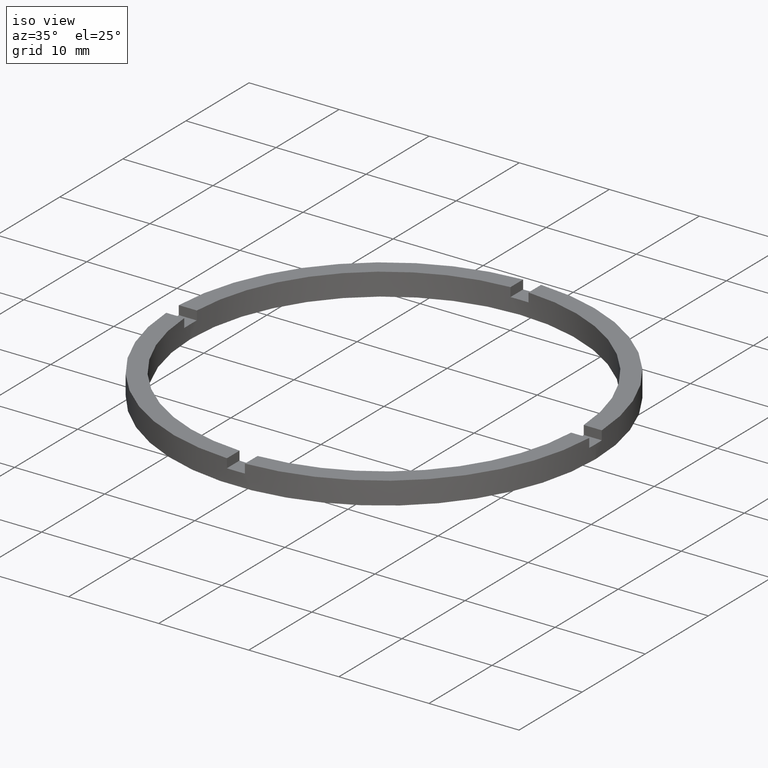
[diagram: clean part render]
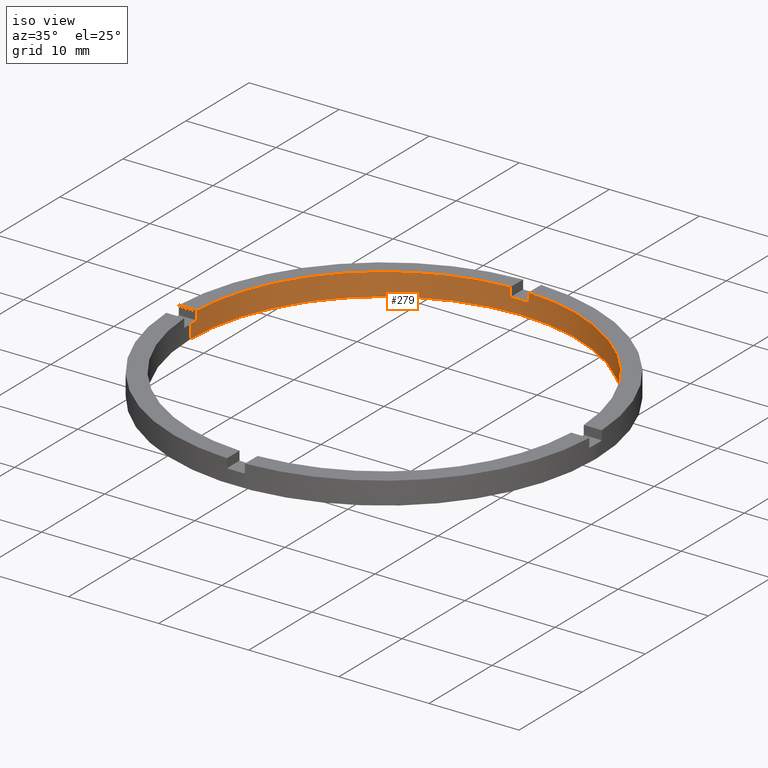
[diagram: same view with one face highlighted and labeled with its STEP entity id]
A machine part, iso view. The second image highlights one B-rep face of the part: STEP entity #279.
In plain terms, the highlighted cylindrical surface (partial cylindrical patch) has radius 21.5 mm, axis along (-0, -0, -1).
Its self-contained STEP definition (entity closure, byte-faithful):
#15 = ORIENTED_EDGE ( 'NONE', *, *, #314, .T. ) ;
#21 = DIRECTION ( 'NONE',  ( 0.000000000000000000, 0.000000000000000000, 1.000000000000000000 ) ) ;
#23 = EDGE_CURVE ( 'NONE', #247, #522, #391, .T. ) ;
#28 = CARTESIAN_POINT ( 'NONE',  ( 21.47673159491453632, 0.9999999999998419042, 2.500000000000000000 ) ) ;
#34 = ORIENTED_EDGE ( 'NONE', *, *, #770, .T. ) ;
#37 = ORIENTED_EDGE ( 'NONE', *, *, #550, .F. ) ;
#42 = EDGE_CURVE ( 'NONE', #681, #522, #423, .T. ) ;
#45 = VERTEX_POINT ( 'NONE', #645 ) ;
#59 = VERTEX_POINT ( 'NONE', #309 ) ;
#75 = EDGE_CURVE ( 'NONE', #681, #59, #176, .T. ) ;
#76 = CARTESIAN_POINT ( 'NONE',  ( -21.47673159491452921, 0.9999999999999749090, 2.500000000000000000 ) ) ;
#78 = EDGE_CURVE ( 'NONE', #247, #408, #434, .T. ) ;
#84 = CARTESIAN_POINT ( 'NONE',  ( 21.47673159491453632, 0.9999999999998419042, 1.500000000000000000 ) ) ;
#110 = DIRECTION ( 'NONE',  ( 0.000000000000000000, 0.000000000000000000, 1.000000000000000000 ) ) ;
#138 = ORIENTED_EDGE ( 'NONE', *, *, #438, .F. ) ;
#150 = ORIENTED_EDGE ( 'NONE', *, *, #23, .T. ) ;
#152 = AXIS2_PLACEMENT_3D ( 'NONE', #347, #654, #648 ) ;
#154 = ORIENTED_EDGE ( 'NONE', *, *, #75, .T. ) ;
#158 = DIRECTION ( 'NONE',  ( 1.000000000000000000, 0.000000000000000000, 0.000000000000000000 ) ) ;
#165 = EDGE_CURVE ( 'NONE', #686, #533, #205, .T. ) ;
#168 = CARTESIAN_POINT ( 'NONE',  ( 0.000000000000000000, 0.000000000000000000, 0.000000000000000000 ) ) ;
#176 = CIRCLE ( 'NONE', #152, 21.50000000000000000 ) ;
#205 = LINE ( 'NONE', #783, #728 ) ;
#206 = CIRCLE ( 'NONE', #608, 21.50000000000000000 ) ;
#209 = CIRCLE ( 'NONE', #718, 21.50000000000000000 ) ;
#215 = VERTEX_POINT ( 'NONE', #285 ) ;
#216 = CIRCLE ( 'NONE', #351, 21.50000000000000000 ) ;
#225 = CARTESIAN_POINT ( 'NONE',  ( 0.9999999999999735767, 21.47673159491452566, 2.500000000000000000 ) ) ;
#229 = ORIENTED_EDGE ( 'NONE', *, *, #165, .T. ) ;
#237 = LINE ( 'NONE', #362, #765 ) ;
#242 = DIRECTION ( 'NONE',  ( 1.000000000000000000, 0.000000000000000000, 0.000000000000000000 ) ) ;
#244 = DIRECTION ( 'NONE',  ( -1.000000000000000000, 0.000000000000000000, 0.000000000000000000 ) ) ;
#247 = VERTEX_POINT ( 'NONE', #704 ) ;
#254 = CARTESIAN_POINT ( 'NONE',  ( 0.000000000000000000, 0.000000000000000000, 2.500000000000000000 ) ) ;
#259 = CARTESIAN_POINT ( 'NONE',  ( 0.000000000000000000, 0.000000000000000000, 2.500000000000000000 ) ) ;
#279 = ADVANCED_FACE ( 'NONE', ( #469 ), #742, .F. ) ;
#282 = VERTEX_POINT ( 'NONE', #311 ) ;
#285 = CARTESIAN_POINT ( 'NONE',  ( -21.47673159491452921, 0.9999999999999749090, 1.500000000000000000 ) ) ;
#286 = CARTESIAN_POINT ( 'NONE',  ( -21.50000000000000000, 0.000000000000000000, 0.000000000000000000 ) ) ;
#301 = ORIENTED_EDGE ( 'NONE', *, *, #650, .F. ) ;
#302 = DIRECTION ( 'NONE',  ( -0.000000000000000000, -0.000000000000000000, -1.000000000000000000 ) ) ;
#305 = DIRECTION ( 'NONE',  ( 0.000000000000000000, 0.000000000000000000, 1.000000000000000000 ) ) ;
#307 = ORIENTED_EDGE ( 'NONE', *, *, #656, .F. ) ;
#309 = CARTESIAN_POINT ( 'NONE',  ( -1.000000000000025535, 21.47673159491452211, 1.500000000000000000 ) ) ;
#311 = CARTESIAN_POINT ( 'NONE',  ( 21.50000000000000000, 2.632990618166809235E-15, 0.000000000000000000 ) ) ;
#312 = VECTOR ( 'NONE', #554, 1000.000000000000000 ) ;
#314 = EDGE_CURVE ( 'NONE', #585, #408, #727, .T. ) ;
#343 = DIRECTION ( 'NONE',  ( -0.000000000000000000, -0.000000000000000000, -1.000000000000000000 ) ) ;
#347 = CARTESIAN_POINT ( 'NONE',  ( 0.000000000000000000, 0.000000000000000000, 1.500000000000000000 ) ) ;
#349 = CARTESIAN_POINT ( 'NONE',  ( 21.50000000000000000, 2.632990618166809235E-15, 2.500000000000000000 ) ) ;
#351 = AXIS2_PLACEMENT_3D ( 'NONE', #168, #612, #158 ) ;
#352 = DIRECTION ( 'NONE',  ( 1.000000000000000000, 0.000000000000000000, 0.000000000000000000 ) ) ;
#356 = CARTESIAN_POINT ( 'NONE',  ( 21.50000000000000000, 2.632990618166809235E-15, 1.500000000000000000 ) ) ;
#362 = CARTESIAN_POINT ( 'NONE',  ( -1.000000000000025979, 21.47673159491452566, 2.500000000000000000 ) ) ;
#369 = DIRECTION ( 'NONE',  ( 0.000000000000000000, 0.000000000000000000, 1.000000000000000000 ) ) ;
#381 = EDGE_CURVE ( 'NONE', #215, #686, #209, .T. ) ;
#385 = DIRECTION ( 'NONE',  ( -0.000000000000000000, -0.000000000000000000, -1.000000000000000000 ) ) ;
#391 = CIRCLE ( 'NONE', #588, 21.50000000000000000 ) ;
#396 = VECTOR ( 'NONE', #21, 1000.000000000000000 ) ;
#398 = VECTOR ( 'NONE', #385, 1000.000000000000000 ) ;
#407 = DIRECTION ( 'NONE',  ( 0.000000000000000000, 0.000000000000000000, 1.000000000000000000 ) ) ;
#408 = VERTEX_POINT ( 'NONE', #84 ) ;
#423 = LINE ( 'NONE', #700, #396 ) ;
#432 = ORIENTED_EDGE ( 'NONE', *, *, #78, .F. ) ;
#434 = LINE ( 'NONE', #28, #398 ) ;
#438 = EDGE_CURVE ( 'NONE', #585, #282, #477, .T. ) ;
#459 = AXIS2_PLACEMENT_3D ( 'NONE', #563, #407, #573 ) ;
#469 = FACE_OUTER_BOUND ( 'NONE', #538, .T. ) ;
#477 = LINE ( 'NONE', #349, #747 ) ;
#484 = CARTESIAN_POINT ( 'NONE',  ( 0.9999999999999735767, 21.47673159491452566, 1.500000000000000000 ) ) ;
#497 = ORIENTED_EDGE ( 'NONE', *, *, #381, .T. ) ;
#508 = LINE ( 'NONE', #76, #312 ) ;
#513 = CARTESIAN_POINT ( 'NONE',  ( -21.50000000000000000, 0.000000000000000000, 1.500000000000000000 ) ) ;
#522 = VERTEX_POINT ( 'NONE', #225 ) ;
#529 = CARTESIAN_POINT ( 'NONE',  ( 0.000000000000000000, 0.000000000000000000, 1.500000000000000000 ) ) ;
#532 = CARTESIAN_POINT ( 'NONE',  ( 0.000000000000000000, 0.000000000000000000, 2.500000000000000000 ) ) ;
#533 = VERTEX_POINT ( 'NONE', #286 ) ;
#536 = ORIENTED_EDGE ( 'NONE', *, *, #42, .F. ) ;
#538 = EDGE_LOOP ( 'NONE', ( #138, #15, #432, #150, #536, #154, #301, #34, #307, #497, #229, #37 ) ) ;
#550 = EDGE_CURVE ( 'NONE', #282, #533, #216, .T. ) ;
#554 = DIRECTION ( 'NONE',  ( 0.000000000000000000, 0.000000000000000000, 1.000000000000000000 ) ) ;
#563 = CARTESIAN_POINT ( 'NONE',  ( 0.000000000000000000, 0.000000000000000000, 1.500000000000000000 ) ) ;
#573 = DIRECTION ( 'NONE',  ( 1.000000000000000000, 0.000000000000000000, 0.000000000000000000 ) ) ;
#584 = DIRECTION ( 'NONE',  ( -0.000000000000000000, -0.000000000000000000, -1.000000000000000000 ) ) ;
#585 = VERTEX_POINT ( 'NONE', #356 ) ;
#588 = AXIS2_PLACEMENT_3D ( 'NONE', #254, #305, #352 ) ;
#592 = DIRECTION ( 'NONE',  ( 1.000000000000000000, 0.000000000000000000, 0.000000000000000000 ) ) ;
#608 = AXIS2_PLACEMENT_3D ( 'NONE', #259, #110, #242 ) ;
#612 = DIRECTION ( 'NONE',  ( 0.000000000000000000, 0.000000000000000000, 1.000000000000000000 ) ) ;
#623 = AXIS2_PLACEMENT_3D ( 'NONE', #532, #632, #244 ) ;
#632 = DIRECTION ( 'NONE',  ( -0.000000000000000000, -0.000000000000000000, -1.000000000000000000 ) ) ;
#645 = CARTESIAN_POINT ( 'NONE',  ( -21.47673159491452921, 0.9999999999999749090, 2.500000000000000000 ) ) ;
#648 = DIRECTION ( 'NONE',  ( 1.000000000000000000, 0.000000000000000000, 0.000000000000000000 ) ) ;
#650 = EDGE_CURVE ( 'NONE', #673, #59, #237, .T. ) ;
#654 = DIRECTION ( 'NONE',  ( 0.000000000000000000, -0.000000000000000000, 1.000000000000000000 ) ) ;
#656 = EDGE_CURVE ( 'NONE', #215, #45, #508, .T. ) ;
#673 = VERTEX_POINT ( 'NONE', #720 ) ;
#681 = VERTEX_POINT ( 'NONE', #484 ) ;
#686 = VERTEX_POINT ( 'NONE', #513 ) ;
#700 = CARTESIAN_POINT ( 'NONE',  ( 0.9999999999999740208, 21.47673159491452921, 2.500000000000000000 ) ) ;
#704 = CARTESIAN_POINT ( 'NONE',  ( 21.47673159491453632, 0.9999999999998419042, 2.500000000000000000 ) ) ;
#718 = AXIS2_PLACEMENT_3D ( 'NONE', #529, #369, #592 ) ;
#720 = CARTESIAN_POINT ( 'NONE',  ( -1.000000000000025535, 21.47673159491452211, 2.500000000000000000 ) ) ;
#727 = CIRCLE ( 'NONE', #459, 21.50000000000000000 ) ;
#728 = VECTOR ( 'NONE', #343, 1000.000000000000000 ) ;
#742 = CYLINDRICAL_SURFACE ( 'NONE', #623, 21.50000000000000000 ) ;
#747 = VECTOR ( 'NONE', #302, 1000.000000000000000 ) ;
#765 = VECTOR ( 'NONE', #584, 1000.000000000000000 ) ;
#770 = EDGE_CURVE ( 'NONE', #673, #45, #206, .T. ) ;
#783 = CARTESIAN_POINT ( 'NONE',  ( -21.50000000000000000, 0.000000000000000000, 2.500000000000000000 ) ) ;